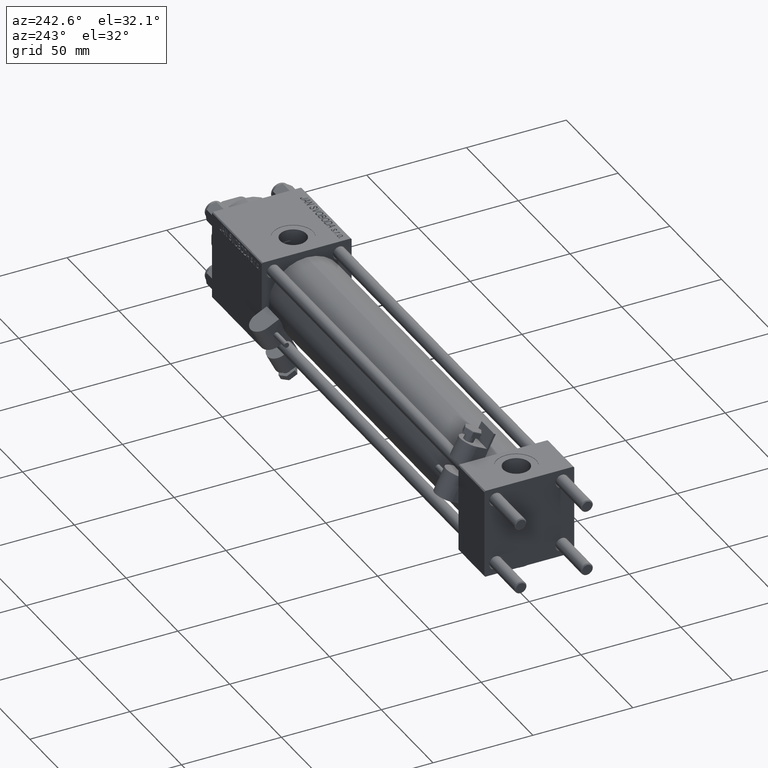
[diagram: clean part render]
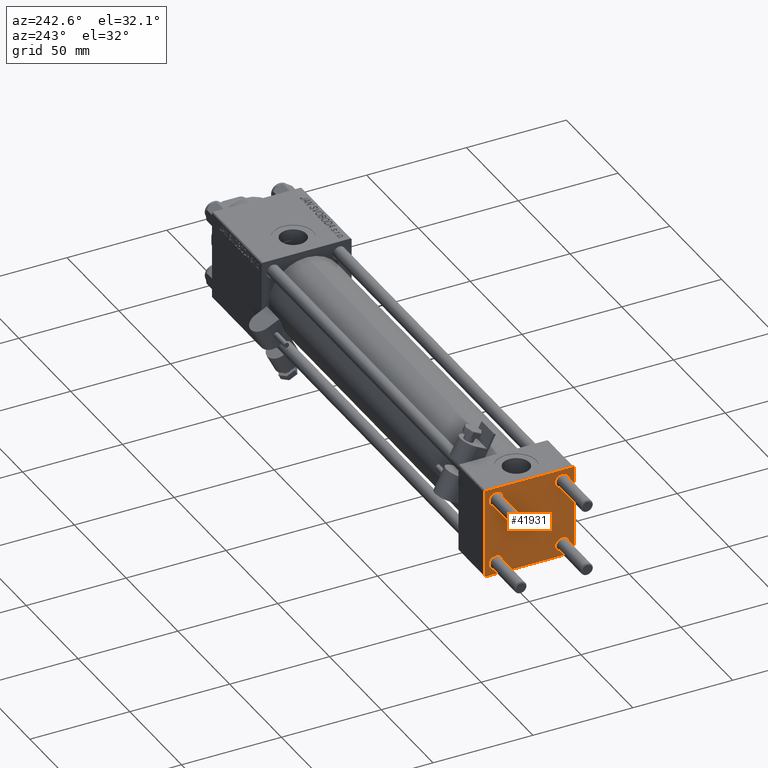
[diagram: same view with one face highlighted and labeled with its STEP entity id]
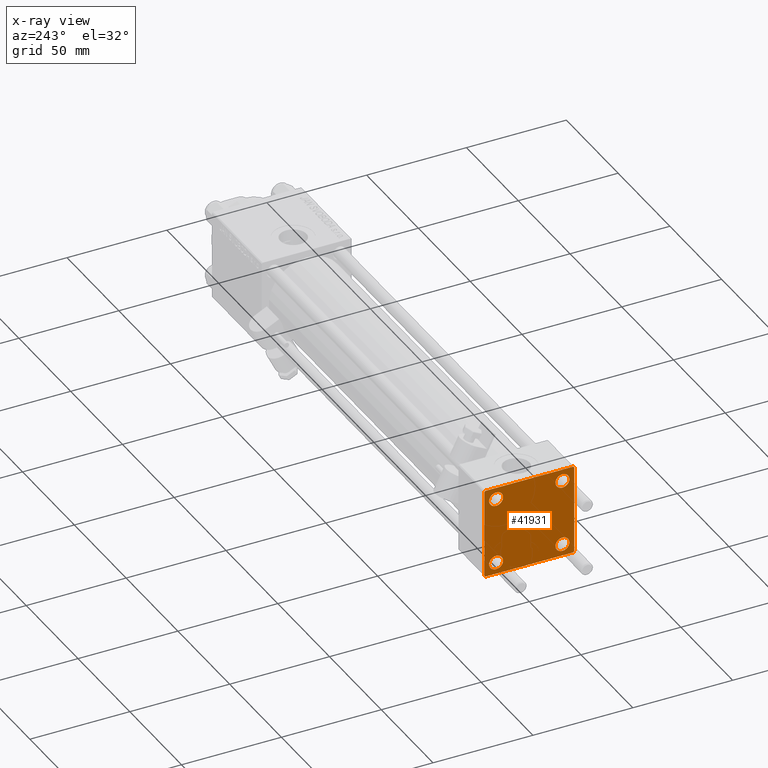
[diagram: x-ray of the same camera — body ghosted, the highlighted face saturated]
A machine part, auxiliary view. The second image highlights one B-rep face of the part: STEP entity #41931.
The next image is the same camera in x-ray: the body ghosted, the highlighted face saturated — about 0% of this face is hidden behind the body in this view.
In plain terms, the highlighted planar face has unit normal (-1, 0, 0).
Its self-contained STEP definition (entity closure, byte-faithful):
#81 = EDGE_LOOP ( 'NONE', ( #46024, #33659, #49182, #36483, #11665, #11066, #48279, #39198 ) ) ;
#250 = EDGE_CURVE ( 'NONE', #3369, #50650, #32181, .T. ) ;
#801 = EDGE_LOOP ( 'NONE', ( #22157, #8450 ) ) ;
#805 = CARTESIAN_POINT ( 'NONE',  ( 0.000000000000000000, 16.59999999999999787, -20.10000000000000142 ) ) ;
#1061 = ORIENTED_EDGE ( 'NONE', *, *, #43566, .T. ) ;
#1157 = LINE ( 'NONE', #30042, #8363 ) ;
#1687 = CIRCLE ( 'NONE', #40972, 3.499999999999996003 ) ;
#1766 = CIRCLE ( 'NONE', #26498, 3.499999999999996003 ) ;
#2189 = VERTEX_POINT ( 'NONE', #7006 ) ;
#2196 = DIRECTION ( 'NONE',  ( 0.000000000000000000, -1.000000000000000000, -7.709882115452476934E-17 ) ) ;
#3274 = CARTESIAN_POINT ( 'NONE',  ( 0.000000000000000000, -21.99999999999997868, 22.50000000000000000 ) ) ;
#3369 = VERTEX_POINT ( 'NONE', #50061 ) ;
#3508 = CARTESIAN_POINT ( 'NONE',  ( 0.000000000000000000, 22.25000000000014566, -22.24999999999984013 ) ) ;
#3877 = DIRECTION ( 'NONE',  ( 0.000000000000000000, 0.000000000000000000, 1.000000000000000000 ) ) ;
#4356 = DIRECTION ( 'NONE',  ( 0.000000000000000000, 0.000000000000000000, -1.000000000000000000 ) ) ;
#5333 = FACE_BOUND ( 'NONE', #6275, .T. ) ;
#5425 = DIRECTION ( 'NONE',  ( 1.000000000000000000, -0.000000000000000000, 0.000000000000000000 ) ) ;
#5434 = LINE ( 'NONE', #50655, #20329 ) ;
#5491 = VECTOR ( 'NONE', #4356, 1000.000000000000000 ) ;
#5599 = CARTESIAN_POINT ( 'NONE',  ( 0.000000000000000000, -22.50000000000000000, 22.50000000000000000 ) ) ;
#6275 = EDGE_LOOP ( 'NONE', ( #28058, #35083 ) ) ;
#6374 = FACE_BOUND ( 'NONE', #801, .T. ) ;
#7006 = CARTESIAN_POINT ( 'NONE',  ( 0.000000000000000000, 21.99999999999999289, -22.49999999999999645 ) ) ;
#7254 = CIRCLE ( 'NONE', #34707, 3.499999999999996003 ) ;
#7673 = CIRCLE ( 'NONE', #8553, 3.499999999999996003 ) ;
#8266 = EDGE_CURVE ( 'NONE', #37180, #50722, #13493, .T. ) ;
#8354 = AXIS2_PLACEMENT_3D ( 'NONE', #42854, #10461, #43107 ) ;
#8363 = VECTOR ( 'NONE', #50397, 1000.000000000000000 ) ;
#8450 = ORIENTED_EDGE ( 'NONE', *, *, #8266, .T. ) ;
#8452 = EDGE_CURVE ( 'NONE', #28379, #38973, #5434, .T. ) ;
#8553 = AXIS2_PLACEMENT_3D ( 'NONE', #32049, #31511, #15749 ) ;
#9018 = CARTESIAN_POINT ( 'NONE',  ( 0.000000000000000000, 16.59999999999999787, 16.60000000000000497 ) ) ;
#9319 = AXIS2_PLACEMENT_3D ( 'NONE', #38221, #38496, #30185 ) ;
#9610 = FACE_BOUND ( 'NONE', #36209, .T. ) ;
#10382 = CARTESIAN_POINT ( 'NONE',  ( 0.000000000000000000, -16.59999999999999076, 13.10000000000001030 ) ) ;
#10461 = DIRECTION ( 'NONE',  ( 1.000000000000000000, -0.000000000000000000, 0.000000000000000000 ) ) ;
#10709 = CARTESIAN_POINT ( 'NONE',  ( 0.000000000000000000, -21.99999999999997158, -22.50000000000000711 ) ) ;
#11066 = ORIENTED_EDGE ( 'NONE', *, *, #36973, .T. ) ;
#11477 = VERTEX_POINT ( 'NONE', #52786 ) ;
#11606 = VERTEX_POINT ( 'NONE', #10709 ) ;
#11618 = VECTOR ( 'NONE', #34345, 1000.000000000000000 ) ;
#11665 = ORIENTED_EDGE ( 'NONE', *, *, #17065, .F. ) ;
#12655 = DIRECTION ( 'NONE',  ( 1.000000000000000000, -0.000000000000000000, 0.000000000000000000 ) ) ;
#13493 = CIRCLE ( 'NONE', #33993, 3.499999999999996003 ) ;
#13590 = EDGE_CURVE ( 'NONE', #2189, #11606, #1157, .T. ) ;
#14021 = LINE ( 'NONE', #18291, #11618 ) ;
#15749 = DIRECTION ( 'NONE',  ( 0.000000000000000000, 0.000000000000000000, 1.000000000000000000 ) ) ;
#15825 = VECTOR ( 'NONE', #44715, 1000.000000000000000 ) ;
#16082 = LINE ( 'NONE', #3508, #15825 ) ;
#16411 = EDGE_LOOP ( 'NONE', ( #19548, #39833 ) ) ;
#16670 = CARTESIAN_POINT ( 'NONE',  ( 0.000000000000000000, -16.59999999999999076, 16.60000000000000853 ) ) ;
#17065 = EDGE_CURVE ( 'NONE', #28242, #50689, #30188, .T. ) ;
#17319 = DIRECTION ( 'NONE',  ( 1.000000000000000000, -0.000000000000000000, 0.000000000000000000 ) ) ;
#17380 = DIRECTION ( 'NONE',  ( 0.000000000000000000, 0.000000000000000000, -1.000000000000000000 ) ) ;
#18291 = CARTESIAN_POINT ( 'NONE',  ( 0.000000000000000000, -22.25000000000014566, -22.24999999999984013 ) ) ;
#18887 = CARTESIAN_POINT ( 'NONE',  ( 0.000000000000000000, -22.50000000000000000, 22.00000000000000000 ) ) ;
#19310 = VECTOR ( 'NONE', #21110, 999.9999999999998863 ) ;
#19548 = ORIENTED_EDGE ( 'NONE', *, *, #39184, .T. ) ;
#20329 = VECTOR ( 'NONE', #2196, 1000.000000000000000 ) ;
#20804 = DIRECTION ( 'NONE',  ( 0.000000000000000000, 0.000000000000000000, 1.000000000000000000 ) ) ;
#21009 = CARTESIAN_POINT ( 'NONE',  ( 0.000000000000000000, 21.99999999999999289, 22.50000000000000355 ) ) ;
#21110 = DIRECTION ( 'NONE',  ( -0.000000000000000000, 0.7071067811865525687, 0.7071067811865425767 ) ) ;
#22157 = ORIENTED_EDGE ( 'NONE', *, *, #33087, .T. ) ;
#22920 = DIRECTION ( 'NONE',  ( 0.000000000000000000, 0.7071067811865474617, -0.7071067811865474617 ) ) ;
#24316 = VERTEX_POINT ( 'NONE', #48897 ) ;
#24377 = VECTOR ( 'NONE', #22920, 1000.000000000000114 ) ;
#24693 = CARTESIAN_POINT ( 'NONE',  ( 0.000000000000000000, -16.59999999999999076, 16.60000000000000853 ) ) ;
#24777 = EDGE_CURVE ( 'NONE', #24316, #52236, #31034, .T. ) ;
#26443 = FACE_OUTER_BOUND ( 'NONE', #81, .T. ) ;
#26498 = AXIS2_PLACEMENT_3D ( 'NONE', #9018, #17319, #20804 ) ;
#27611 = AXIS2_PLACEMENT_3D ( 'NONE', #32758, #40526, #3877 ) ;
#28058 = ORIENTED_EDGE ( 'NONE', *, *, #24777, .T. ) ;
#28242 = VERTEX_POINT ( 'NONE', #18887 ) ;
#28379 = VERTEX_POINT ( 'NONE', #21009 ) ;
#28597 = DIRECTION ( 'NONE',  ( 0.000000000000000000, 0.000000000000000000, 1.000000000000000000 ) ) ;
#28903 = CIRCLE ( 'NONE', #41704, 3.499999999999996003 ) ;
#28971 = DIRECTION ( 'NONE',  ( 0.000000000000000000, 0.000000000000000000, 1.000000000000000000 ) ) ;
#29661 = EDGE_CURVE ( 'NONE', #28379, #3369, #44074, .T. ) ;
#29944 = VERTEX_POINT ( 'NONE', #35418 ) ;
#30042 = CARTESIAN_POINT ( 'NONE',  ( 0.000000000000000000, 22.50000000000000000, -22.49999999999999645 ) ) ;
#30185 = DIRECTION ( 'NONE',  ( -0.000000000000000000, 0.000000000000000000, 1.000000000000000000 ) ) ;
#30188 = LINE ( 'NONE', #5599, #32424 ) ;
#30966 = FACE_BOUND ( 'NONE', #16411, .T. ) ;
#31034 = CIRCLE ( 'NONE', #27611, 3.499999999999996003 ) ;
#31511 = DIRECTION ( 'NONE',  ( 1.000000000000000000, -0.000000000000000000, 0.000000000000000000 ) ) ;
#31859 = DIRECTION ( 'NONE',  ( 0.000000000000000000, 0.000000000000000000, 1.000000000000000000 ) ) ;
#31943 = EDGE_CURVE ( 'NONE', #11606, #50689, #14021, .T. ) ;
#32049 = CARTESIAN_POINT ( 'NONE',  ( 0.000000000000000000, 16.59999999999999787, -16.60000000000000497 ) ) ;
#32181 = LINE ( 'NONE', #36205, #5491 ) ;
#32424 = VECTOR ( 'NONE', #17380, 1000.000000000000000 ) ;
#32758 = CARTESIAN_POINT ( 'NONE',  ( 0.000000000000000000, -16.59999999999999076, -16.60000000000000853 ) ) ;
#33087 = EDGE_CURVE ( 'NONE', #50722, #37180, #7254, .T. ) ;
#33229 = EDGE_CURVE ( 'NONE', #50650, #2189, #16082, .T. ) ;
#33403 = LINE ( 'NONE', #38487, #19310 ) ;
#33659 = ORIENTED_EDGE ( 'NONE', *, *, #33229, .T. ) ;
#33993 = AXIS2_PLACEMENT_3D ( 'NONE', #16670, #12655, #28971 ) ;
#34345 = DIRECTION ( 'NONE',  ( 0.000000000000000000, -0.7071067811865426878, 0.7071067811865524577 ) ) ;
#34707 = AXIS2_PLACEMENT_3D ( 'NONE', #24693, #5425, #49833 ) ;
#34721 = CARTESIAN_POINT ( 'NONE',  ( 0.000000000000000000, 16.59999999999999787, -13.10000000000000675 ) ) ;
#35083 = ORIENTED_EDGE ( 'NONE', *, *, #40118, .T. ) ;
#35418 = CARTESIAN_POINT ( 'NONE',  ( 0.000000000000000000, 16.59999999999999787, 20.10000000000000142 ) ) ;
#36205 = CARTESIAN_POINT ( 'NONE',  ( 0.000000000000000000, 22.50000000000000000, 22.50000000000000355 ) ) ;
#36209 = EDGE_LOOP ( 'NONE', ( #1061, #50905 ) ) ;
#36483 = ORIENTED_EDGE ( 'NONE', *, *, #31943, .T. ) ;
#36973 = EDGE_CURVE ( 'NONE', #28242, #38973, #33403, .T. ) ;
#37180 = VERTEX_POINT ( 'NONE', #10382 ) ;
#37993 = VERTEX_POINT ( 'NONE', #34721 ) ;
#38221 = CARTESIAN_POINT ( 'NONE',  ( 0.000000000000000000, 0.000000000000000000, 0.000000000000000000 ) ) ;
#38487 = CARTESIAN_POINT ( 'NONE',  ( -0.000000000000000000, -22.24999999999984013, 22.25000000000015277 ) ) ;
#38496 = DIRECTION ( 'NONE',  ( -1.000000000000000000, 0.000000000000000000, -0.000000000000000000 ) ) ;
#38830 = CARTESIAN_POINT ( 'NONE',  ( 0.000000000000000000, -16.59999999999999076, -20.10000000000000497 ) ) ;
#38973 = VERTEX_POINT ( 'NONE', #3274 ) ;
#39184 = EDGE_CURVE ( 'NONE', #29944, #11477, #43393, .T. ) ;
#39198 = ORIENTED_EDGE ( 'NONE', *, *, #29661, .T. ) ;
#39833 = ORIENTED_EDGE ( 'NONE', *, *, #51429, .T. ) ;
#40118 = EDGE_CURVE ( 'NONE', #52236, #24316, #28903, .T. ) ;
#40526 = DIRECTION ( 'NONE',  ( 1.000000000000000000, -0.000000000000000000, 0.000000000000000000 ) ) ;
#40972 = AXIS2_PLACEMENT_3D ( 'NONE', #51425, #51688, #31859 ) ;
#41208 = CARTESIAN_POINT ( 'NONE',  ( 0.000000000000000000, -16.59999999999999076, 20.10000000000000853 ) ) ;
#41704 = AXIS2_PLACEMENT_3D ( 'NONE', #48680, #48939, #28597 ) ;
#41734 = CARTESIAN_POINT ( 'NONE',  ( 0.000000000000000000, 22.50000000000000000, -21.99999999999996803 ) ) ;
#41931 = ADVANCED_FACE ( 'NONE', ( #6374, #5333, #9610, #30966, #26443 ), #50815, .T. ) ;
#42854 = CARTESIAN_POINT ( 'NONE',  ( 0.000000000000000000, 16.59999999999999787, 16.60000000000000497 ) ) ;
#43107 = DIRECTION ( 'NONE',  ( 0.000000000000000000, 0.000000000000000000, 1.000000000000000000 ) ) ;
#43393 = CIRCLE ( 'NONE', #8354, 3.499999999999996003 ) ;
#43566 = EDGE_CURVE ( 'NONE', #37993, #52350, #1687, .T. ) ;
#44074 = LINE ( 'NONE', #48079, #24377 ) ;
#44715 = DIRECTION ( 'NONE',  ( -0.000000000000000000, -0.7071067811865426878, -0.7071067811865524577 ) ) ;
#46024 = ORIENTED_EDGE ( 'NONE', *, *, #250, .T. ) ;
#48079 = CARTESIAN_POINT ( 'NONE',  ( 0.000000000000000000, 22.24999999999999645, 22.24999999999999645 ) ) ;
#48279 = ORIENTED_EDGE ( 'NONE', *, *, #8452, .F. ) ;
#48680 = CARTESIAN_POINT ( 'NONE',  ( 0.000000000000000000, -16.59999999999999076, -16.60000000000000853 ) ) ;
#48897 = CARTESIAN_POINT ( 'NONE',  ( 0.000000000000000000, -16.59999999999999076, -13.10000000000001030 ) ) ;
#48939 = DIRECTION ( 'NONE',  ( 1.000000000000000000, -0.000000000000000000, 0.000000000000000000 ) ) ;
#49182 = ORIENTED_EDGE ( 'NONE', *, *, #13590, .T. ) ;
#49236 = CARTESIAN_POINT ( 'NONE',  ( 0.000000000000000000, -22.50000000000000000, -21.99999999999997158 ) ) ;
#49833 = DIRECTION ( 'NONE',  ( 0.000000000000000000, 0.000000000000000000, 1.000000000000000000 ) ) ;
#50061 = CARTESIAN_POINT ( 'NONE',  ( 0.000000000000000000, 22.50000000000000000, 21.99999999999999645 ) ) ;
#50397 = DIRECTION ( 'NONE',  ( 0.000000000000000000, -1.000000000000000000, -2.312964634635742957E-16 ) ) ;
#50650 = VERTEX_POINT ( 'NONE', #41734 ) ;
#50655 = CARTESIAN_POINT ( 'NONE',  ( 0.000000000000000000, 22.50000000000000000, 22.50000000000000355 ) ) ;
#50689 = VERTEX_POINT ( 'NONE', #49236 ) ;
#50722 = VERTEX_POINT ( 'NONE', #41208 ) ;
#50815 = PLANE ( 'NONE',  #9319 ) ;
#50836 = EDGE_CURVE ( 'NONE', #52350, #37993, #7673, .T. ) ;
#50905 = ORIENTED_EDGE ( 'NONE', *, *, #50836, .T. ) ;
#51425 = CARTESIAN_POINT ( 'NONE',  ( 0.000000000000000000, 16.59999999999999787, -16.60000000000000497 ) ) ;
#51429 = EDGE_CURVE ( 'NONE', #11477, #29944, #1766, .T. ) ;
#51688 = DIRECTION ( 'NONE',  ( 1.000000000000000000, -0.000000000000000000, 0.000000000000000000 ) ) ;
#52236 = VERTEX_POINT ( 'NONE', #38830 ) ;
#52350 = VERTEX_POINT ( 'NONE', #805 ) ;
#52786 = CARTESIAN_POINT ( 'NONE',  ( 0.000000000000000000, 16.59999999999999787, 13.10000000000000675 ) ) ;